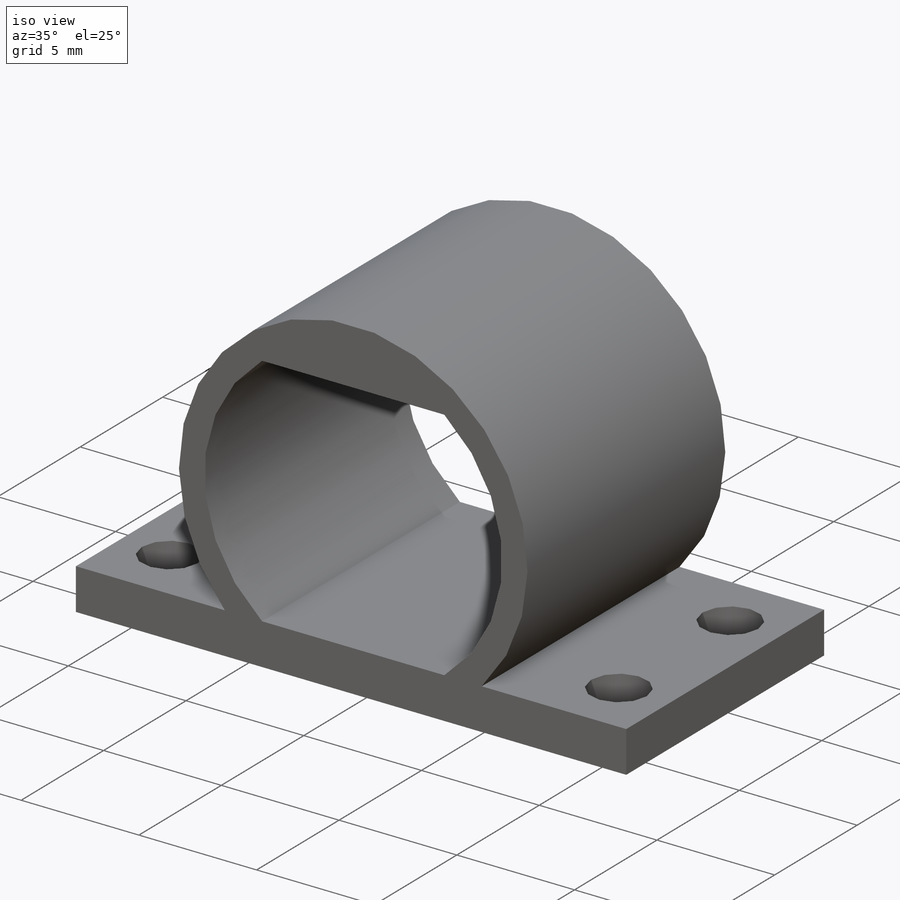
[diagram: iso view]
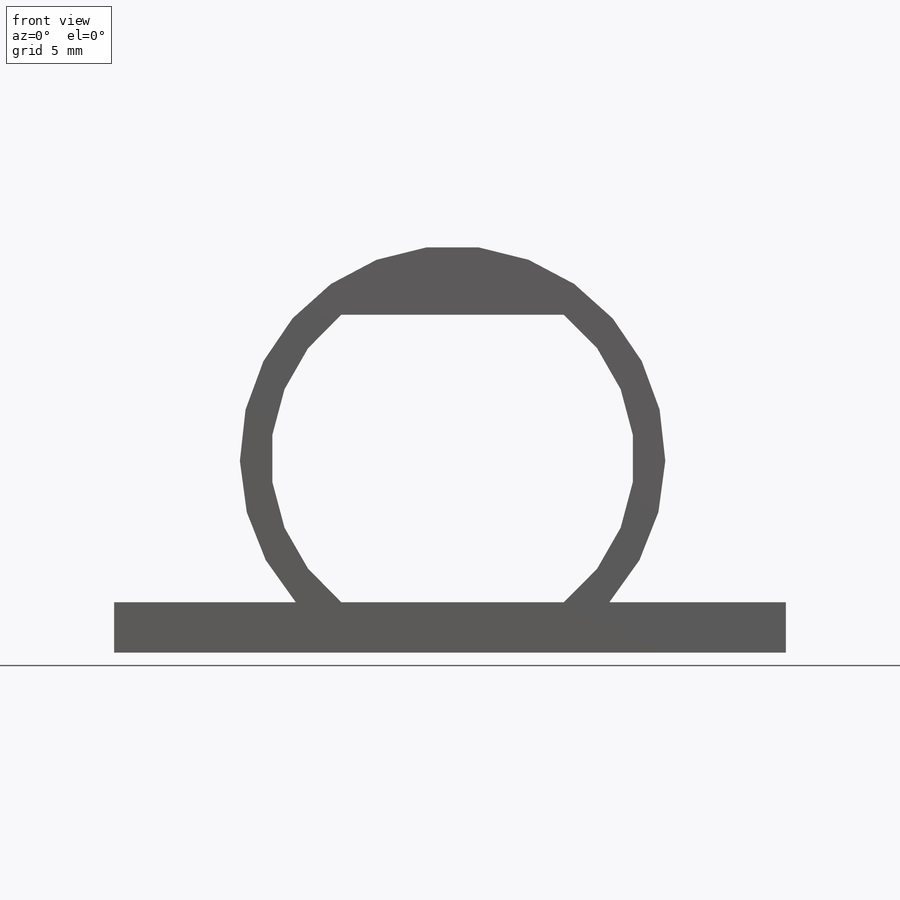
[diagram: front view]
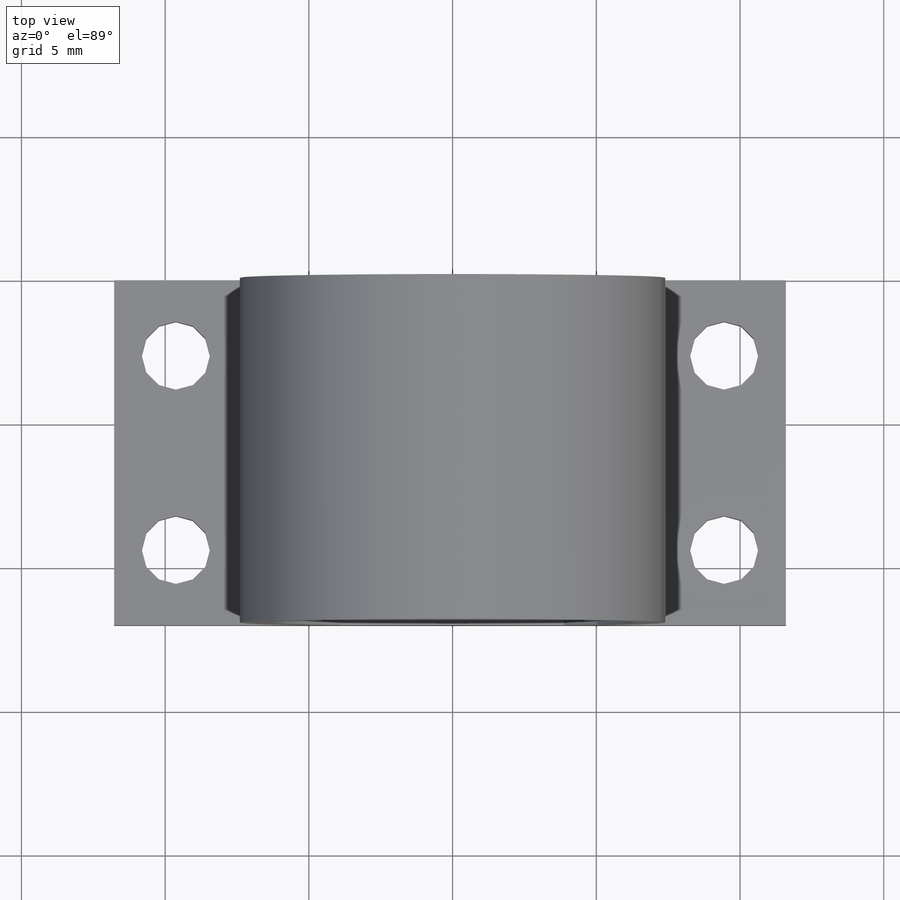
[diagram: top view]
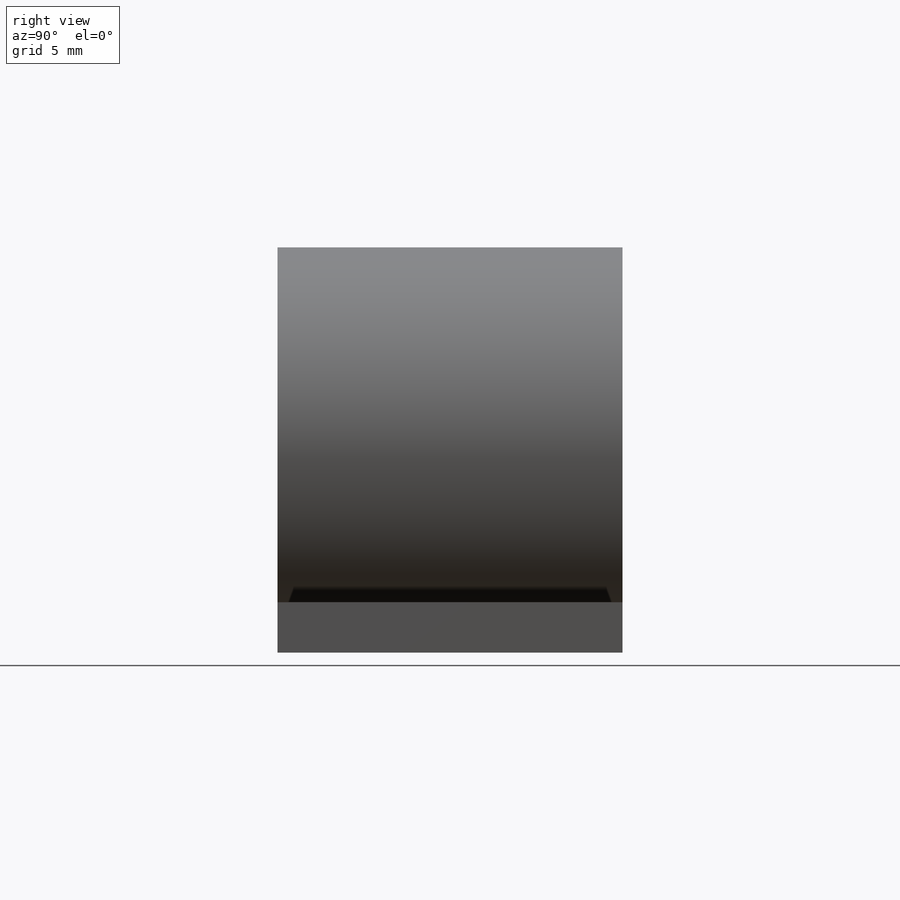
[diagram: right view]
SOLIDWORKS PART (.sldprt)
format: sldprt  version: not decoded by parser v0  size: 315,392 bytes
history: native  units: mm
features: sketch x7, cut_extrude x4, extrude x2, material x1 (+13 scaffold rows collapsed)
feature tree (27):
  scaffold x13  (default folders/planes/origin — collapsed)
  material  "Material <not specified>"
  sketch  "Sketch1"  dims[D1=12.0mm D2=10.0mm D3=~2.696752mm]
  extrude  "Boss-Extrude1"  Depth=12mm
  sketch  "Sketch3"  dims[D1=~6.63325mm]
  cut_extrude  "Cut-Extrude3"  Depth=5mm
  sketch  "Sketch6"  dims[D1=~2.14991mm D2=~2.620212mm]
  sketch  "Sketch7"  dims[D1=12.15mm D2=~6.074606mm]
  extrude  "Boss-Extrude6"  Depth=12mm
  sketch  "Sketch9"
  cut_extrude  "Cut-Extrude4"  Depth=12mm
  sketch  "Sketch10"
  cut_extrude  "Cut-Extrude5"  Depth=12mm
  sketch  "Sketch11"  dims[D1=~12.64763mm]
  cut_extrude  "Cut-Extrude7"  Depth=19mm
decode coverage: 11 of 13 modeling features carry decoded parameters
note: ~ marks probable driven/reference dimensions
note: suppression state not decoded; provenance and decode notes live in map.json
